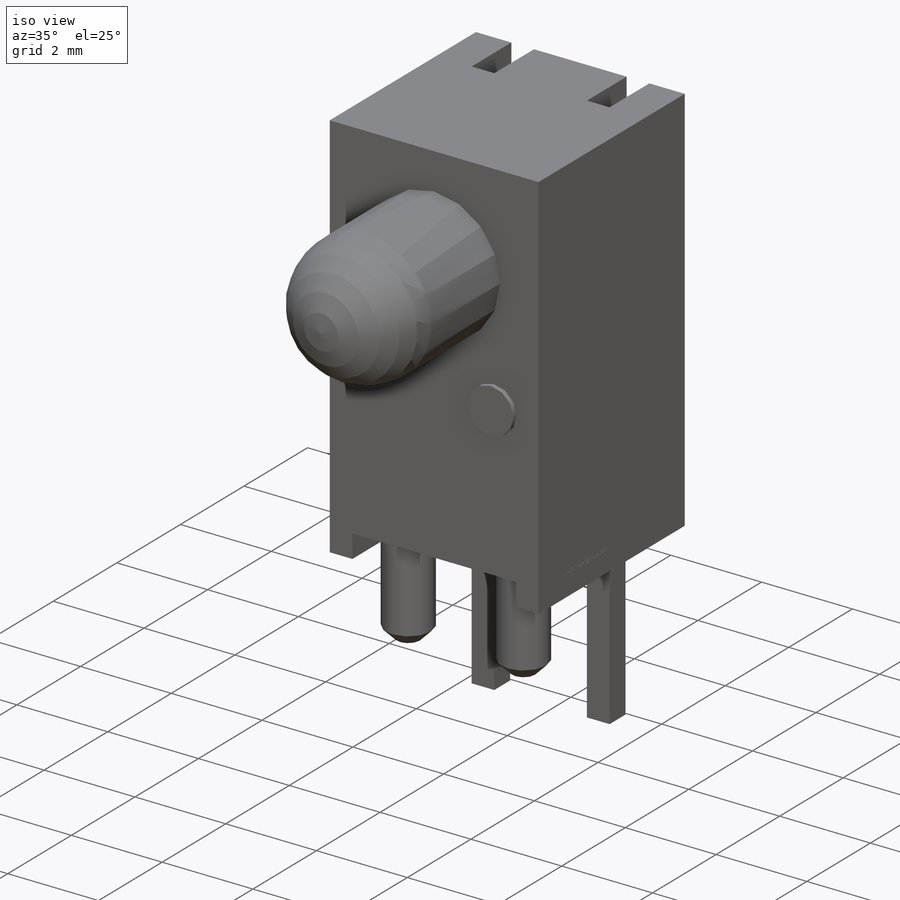
[diagram: iso view]
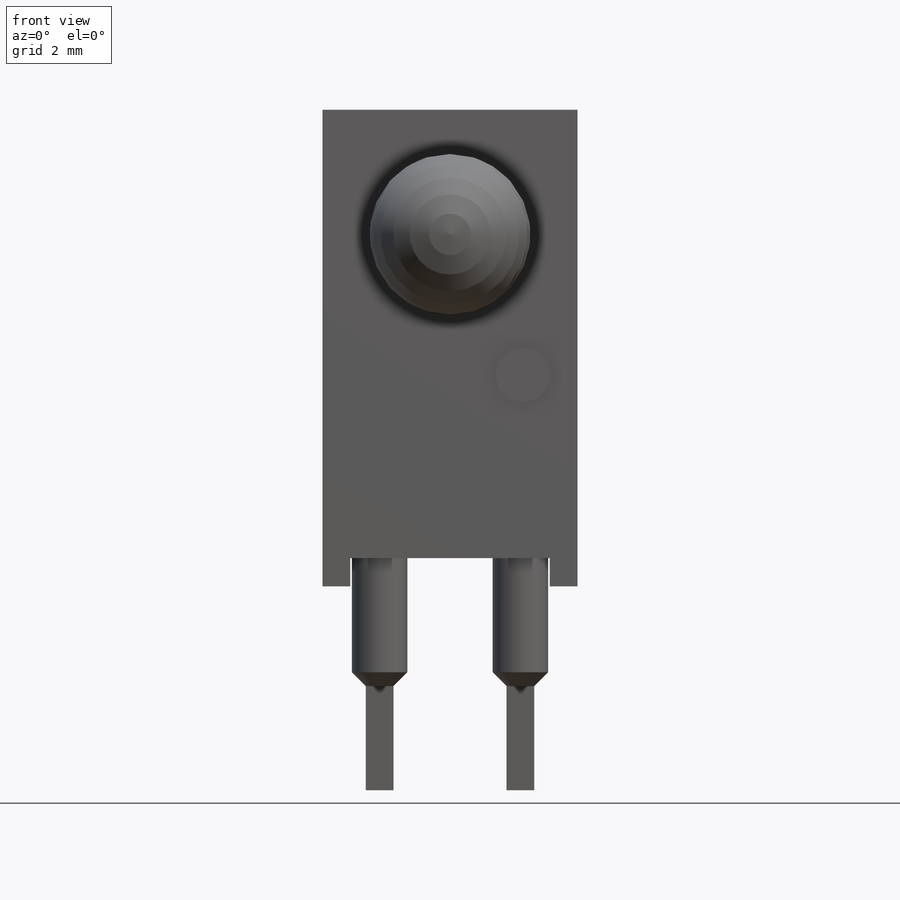
[diagram: front view]
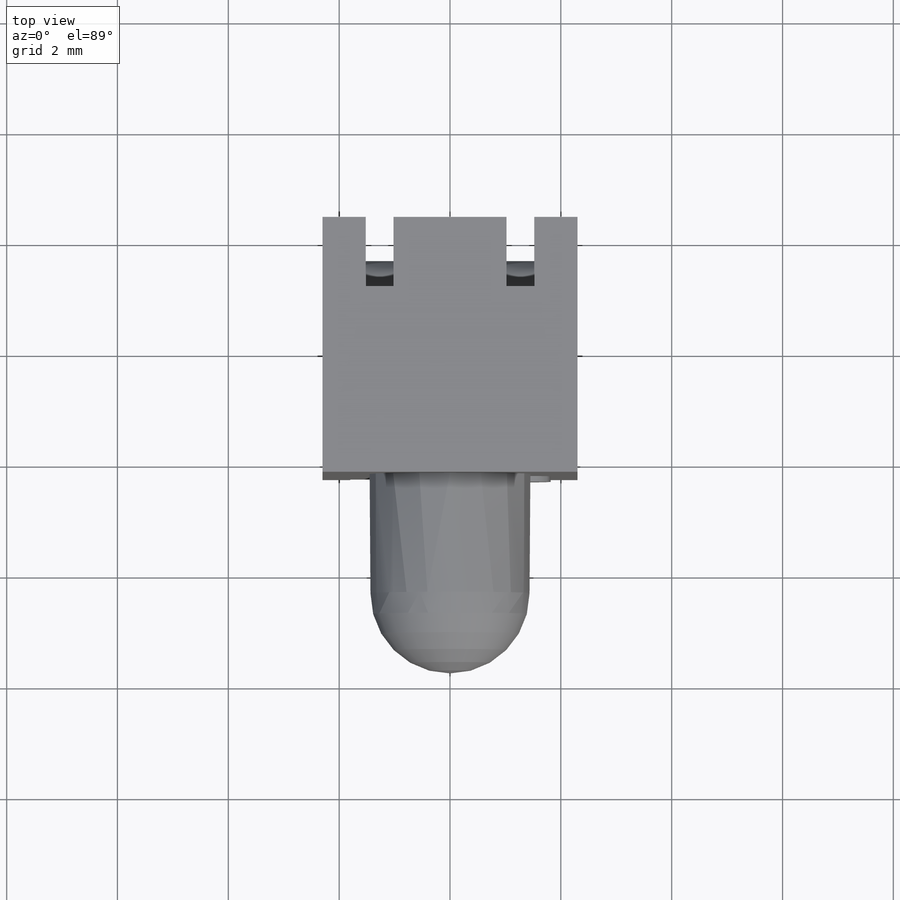
[diagram: top view]
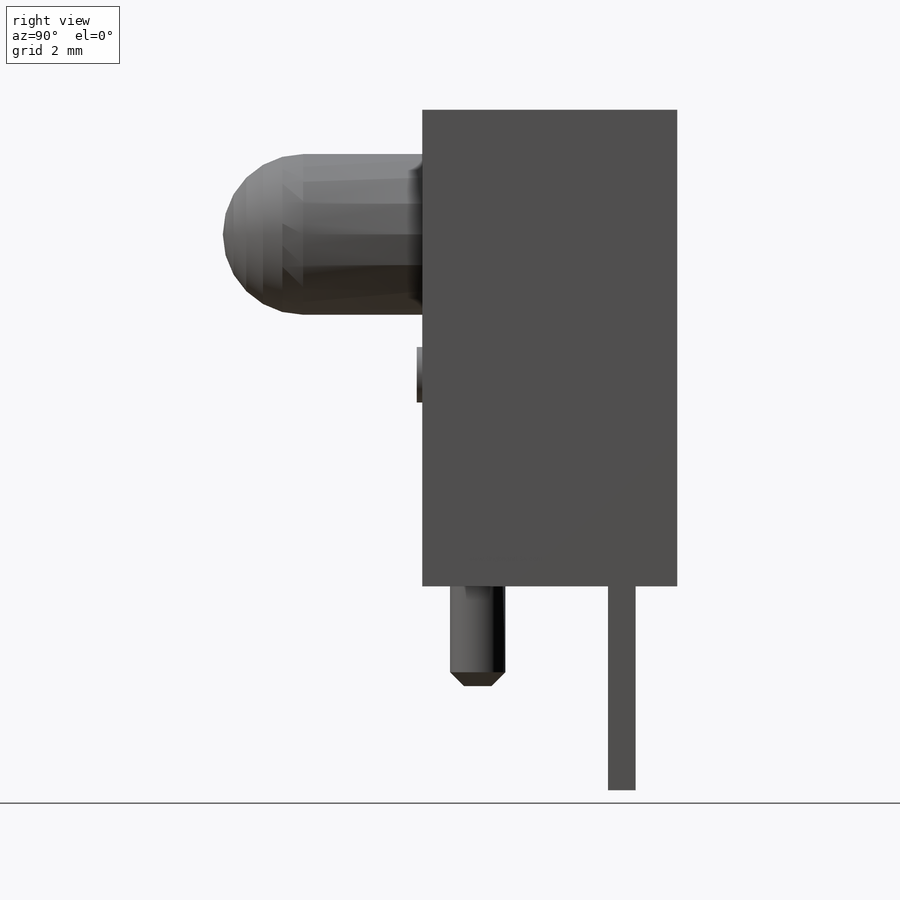
[diagram: right view]
SOLIDWORKS PART (.sldprt)
format: sldprt  version: not decoded by parser v0  size: 679,424 bytes
history: native  units: mm
features: sketch x10, extrude x6, cut_extrude x3, material x1, revolve x1, chamfer x1, fillet x1 (+11 scaffold rows collapsed)
feature tree (34):
  scaffold x11  (default folders/planes/origin — collapsed)
  material  "Material <not specified>"
  sketch  "Sketch1"  dims[c1.D4=2.9mm c1.D7=2.9mm c1.D1=4.6mm c1.D2=8.6mm c1.D3=2.535mm c1.D5=3.2mm c1.D6=5.08mm c1.D8=3.6mm c2.D3=6.35mm]
  extrude  "Extrude1"  Depth=4.6mm
  sketch  "Sketch4"  dims[D4=~0.707936mm D1=0.508mm D2=0.5mm D3=0.5mm]
  cut_extrude  "Cut-Extrude1"  [1 undecoded]
  revolve  "Revolve1"  [1 undecoded]
  sketch  "Sketch1<4>"  dims[D1=360.0deg]
  sketch  "Sketch5"  dims[D5=1.0mm D1=0.5mm D2=0.5mm D3=3.6mm D4=2.54mm D6=1.0mm]
  cut_extrude  "Cut-Extrude2"  [1 undecoded]
  extrude  "Extrude2"  [1 undecoded]
  sketch  "Sketch5<4>"
  extrude  "Extrude3"  [1 undecoded]
  sketch  "Sketch5<5>"
  extrude  "Extrude4"  [1 undecoded]
  sketch  "Sketch5<6>"  dims[D1=1.8mm]
  extrude  "Extrude5"  [1 undecoded]
  sketch  "Sketch5<7>"  dims[D1=3.68mm]
  chamfer  "Chamfer1"  Distance=0.25mm Angle=45deg
  fillet  "Fillet1"  Radius=0.5mm
  extrude  "Extrude7"  [1 undecoded]
  sketch  "Sketch4<4>"  dims[D1=0.1mm]
  sketch  "Sketch6"  dims[D1=3.0mm]
  cut_extrude  "Cut-Extrude3"  Depth=0.01mm
decode coverage: 12 of 22 modeling features carry decoded parameters
note: ~ marks probable driven/reference dimensions
note: 8 parameter values undecoded
summary: no parameter record found for 8 features
note: suppression state not decoded; provenance and decode notes live in map.json
